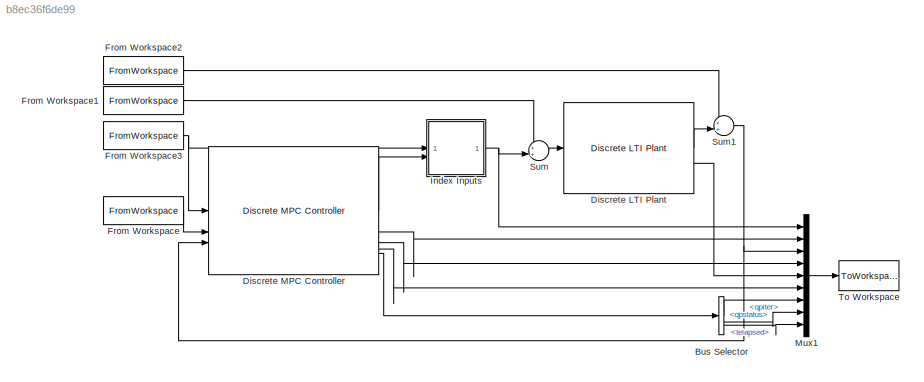
MODEL mdl_b8ec36f6de99
KIND model
CONFIG AbsTol = auto
CONFIG EnableMultiTasking = on
CONFIG FixedStep = simopts.Ts
CONFIG MaxStep = auto
CONFIG MinStep = auto
CONFIG RelTol = 1e-3
CONFIG SampleTimeConstraint = Unconstrained
CONFIG SolverName = FixedStepDiscrete
CONFIG StartTime = 0.0
CONFIG StopTime = simopts.simulink.Tfinal
BLOCK [BusSelector] Bus Selector
  OutputSignals = qpiter,qpstatus,telapsed
BLOCK [Reference] Discrete LTI Plant  REF=jMPClib/MPC Blocks/Discrete LTI Plant
  SourceBlock = jMPClib/MPC Blocks/Discrete LTI Plant
  SourceProductName = JMPC Toolbox
  SourceType = Discrete Linear Model
BLOCK [Reference] Discrete MPC Controller  REF=jMPClib/MPC Blocks/Discrete MPC Controller
  SourceBlock = jMPClib/MPC Blocks/Discrete MPC Controller
  SourceProductName = JMPC Toolbox
  SourceType = Model Predictive Controller
BLOCK [FromWorkspace] From Workspace
  SampleTime = simopts.Ts
  VariableName = simopts.simulink.setp
BLOCK [FromWorkspace] From Workspace1
  SampleTime = simopts.Ts
  VariableName = simopts.simulink.udist
BLOCK [FromWorkspace] From Workspace2
  SampleTime = simopts.Ts
  VariableName = simopts.simulink.ydist
BLOCK [FromWorkspace] From Workspace3
  SampleTime = simopts.Ts
  VariableName = simopts.simulink.mdist
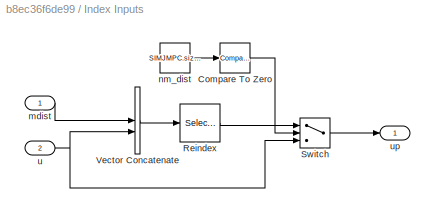
BLOCK [SubSystem] Index Inputs
BLOCK [Reference] Index Inputs/Compare To Zero  REF=simulink/Logic and Bit
Operations/Compare
To Zero
  SourceBlock = simulink/Logic and Bit\nOperations/Compare\nTo Zero
  SourceType = Compare To Zero
BLOCK [Selector] Index Inputs/Reindex
  IndexOptions = Index vector (dialog)
  Indices = simopts.simulink.mdist_ind
  InputPortWidth = SIMJMPC.sizes.nm_in+max(SIMJMPC.sizes.nm_dist,1)
  OutputSizes = 1
BLOCK [Switch] Index Inputs/Switch
  Criteria = u2 > Threshold
  InputSameDT = off
  SaturateOnIntegerOverflow = off
BLOCK [Concatenate] Index Inputs/Vector Concatenate
BLOCK [Inport] Index Inputs/mdist
BLOCK [Constant] Index Inputs/nm_dist
  Value = SIMJMPC.sizes.nm_dist
BLOCK [Inport] Index Inputs/u
  Port = 2
BLOCK [Outport] Index Inputs/up
BLOCK [Mux] Mux1
  DisplayOption = bar
  Inputs = 9
BLOCK [Sum] Sum
  Inputs = ++|
BLOCK [Sum] Sum1
  Inputs = ++|
BLOCK [ToWorkspace] To Workspace
  MaxDataPoints = inf
  SampleTime = simopts.Ts
  SaveFormat = Structure
  VariableName = SIMJMPCRES
LINE Bus Selector:1 -> Mux1:7
LINE Bus Selector:2 -> Mux1:8
LINE Bus Selector:3 -> Mux1:9
LINE Discrete LTI Plant:1 -> Sum1:2
LINE Discrete LTI Plant:2 -> Mux1:5
LINE Discrete MPC Controller:1 -> Index Inputs:2
LINE Discrete MPC Controller:2 -> Mux1:2
LINE Discrete MPC Controller:3 -> Mux1:4
LINE Discrete MPC Controller:4 -> Mux1:6
LINE Discrete MPC Controller:5 -> Bus Selector:1
LINE From Workspace1:1 -> Sum:1
LINE From Workspace2:1 -> Sum1:1
NET From Workspace3:1 -> Discrete MPC Controller:1, Index Inputs:1
LINE From Workspace:1 -> Discrete MPC Controller:2
LINE Index Inputs/Compare To Zero:1 -> Index Inputs/Switch:2
LINE Index Inputs/Reindex:1 -> Index Inputs/Switch:1
LINE Index Inputs/Switch:1 -> Index Inputs/up:1
LINE Index Inputs/Vector Concatenate:1 -> Index Inputs/Reindex:1
LINE Index Inputs/mdist:1 -> Index Inputs/Vector Concatenate:1
LINE Index Inputs/nm_dist:1 -> Index Inputs/Compare To Zero:1
NET Index Inputs/u:1 -> Index Inputs/Switch:3, Index Inputs/Vector Concatenate:2
NET Index Inputs:1 -> Mux1:1, Sum:2
LINE Mux1:1 -> To Workspace:1
NET Sum1:1 -> Discrete MPC Controller:3, Mux1:3
LINE Sum:1 -> Discrete LTI Plant:1
note: NET lines group one-source signal fan-out (src -> all destinations, sorted); 1:1 wires keep LINE
